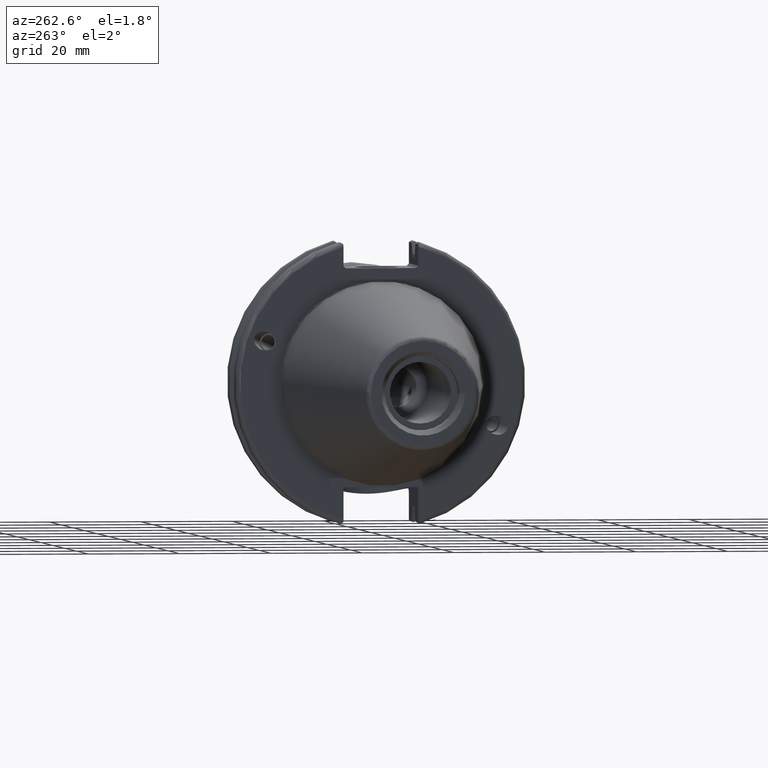
[diagram: clean part render]
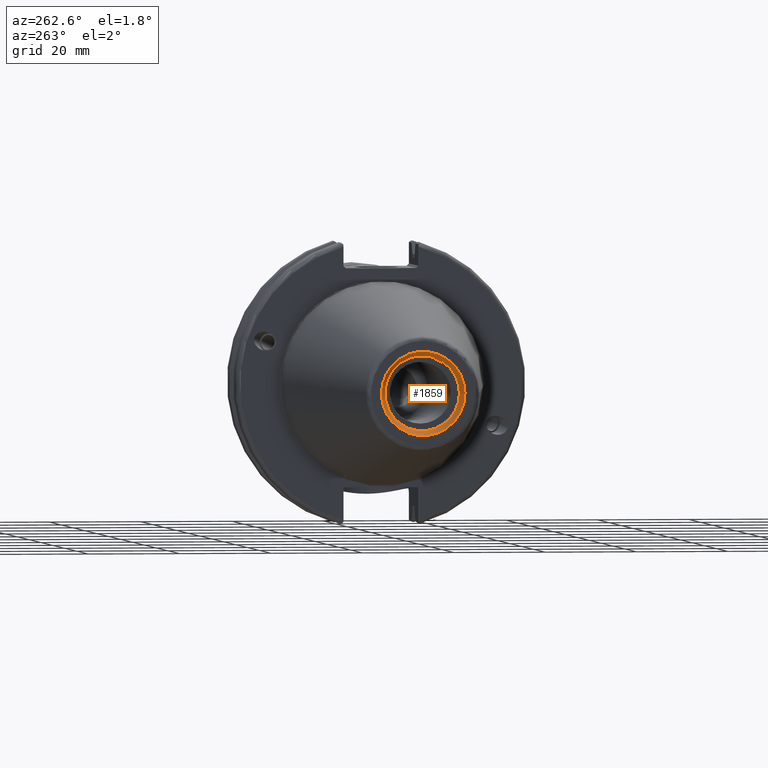
[diagram: same view with one face highlighted and labeled with its STEP entity id]
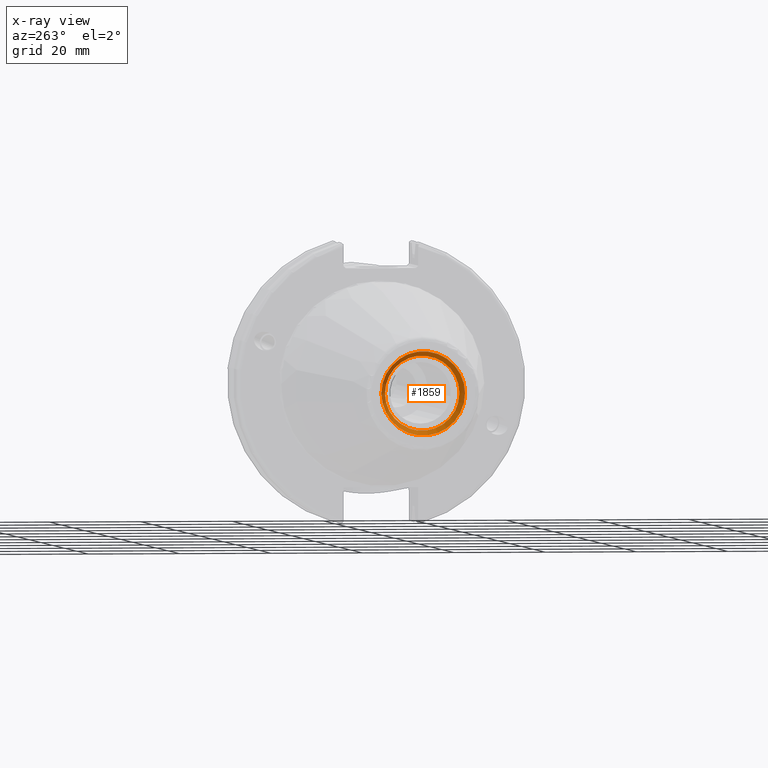
[diagram: x-ray of the same camera — body ghosted, the highlighted face saturated]
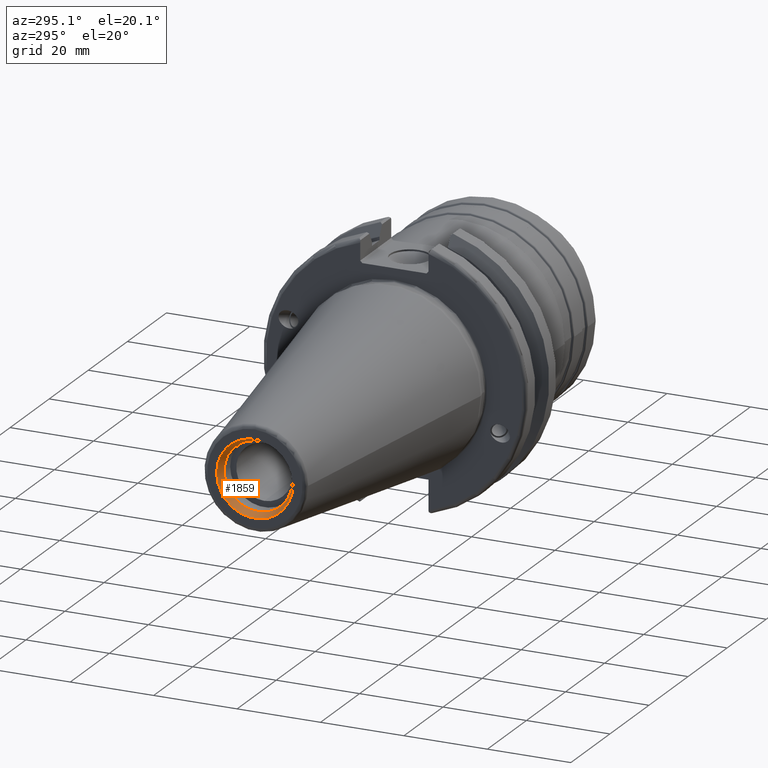
[diagram: same view with one face highlighted and labeled with its STEP entity id]
A machine part, auxiliary view. The second image highlights one B-rep face of the part: STEP entity #1859.
The next image is the same camera in x-ray: the body ghosted, the highlighted face saturated — about 0% of this face is hidden behind the body in this view.
A second angle (auxiliary view) of the same face is appended — the face is thin or edge-on in the first view.
In plain terms, the highlighted conical surface has half-angle 30 deg.
Its self-contained STEP definition (entity closure, byte-faithful):
#158=CONICAL_SURFACE('',#2128,8.65,0.523598775598298);
#246=LINE('',#3791,#334);
#334=VECTOR('',#2707,8.65);
#468=FACE_OUTER_BOUND('',#586,.T.);
#586=EDGE_LOOP('',(#1729,#1730,#1731,#1732));
#691=CIRCLE('',#2085,9.15);
#707=CIRCLE('',#2127,8.14999999999999);
#876=VERTEX_POINT('',#3696);
#892=VERTEX_POINT('',#3787);
#1134=EDGE_CURVE('',#876,#876,#691,.T.);
#1172=EDGE_CURVE('',#892,#892,#707,.T.);
#1173=EDGE_CURVE('',#892,#876,#246,.T.);
#1729=ORIENTED_EDGE('',*,*,#1172,.T.);
#1730=ORIENTED_EDGE('',*,*,#1173,.T.);
#1731=ORIENTED_EDGE('',*,*,#1134,.F.);
#1732=ORIENTED_EDGE('',*,*,#1173,.F.);
#1859=ADVANCED_FACE('',(#468),#158,.F.);
#2085=AXIS2_PLACEMENT_3D('',#3697,#2603,#2604);
#2127=AXIS2_PLACEMENT_3D('',#3789,#2703,#2704);
#2128=AXIS2_PLACEMENT_3D('',#3790,#2705,#2706);
#2603=DIRECTION('center_axis',(1.,0.,0.));
#2604=DIRECTION('ref_axis',(0.,0.,-1.));
#2703=DIRECTION('center_axis',(1.,0.,0.));
#2704=DIRECTION('ref_axis',(0.,0.,-1.));
#2705=DIRECTION('center_axis',(-1.,0.,0.));
#2706=DIRECTION('ref_axis',(0.,1.,0.));
#2707=DIRECTION('',(-0.866025403784439,-0.5,-6.12323399573676E-17));
#3696=CARTESIAN_POINT('',(-68.25,-9.15,-1.12055182121983E-15));
#3697=CARTESIAN_POINT('Origin',(-68.25,0.,0.));
#3787=CARTESIAN_POINT('',(-66.5179491924311,-8.14999999999999,-9.98087141305092E-16));
#3789=CARTESIAN_POINT('Origin',(-66.5179491924311,0.,0.));
#3790=CARTESIAN_POINT('Origin',(-67.3839745962156,0.,0.));
#3791=CARTESIAN_POINT('',(-67.3839745962156,-8.65,-1.05931948126246E-15));